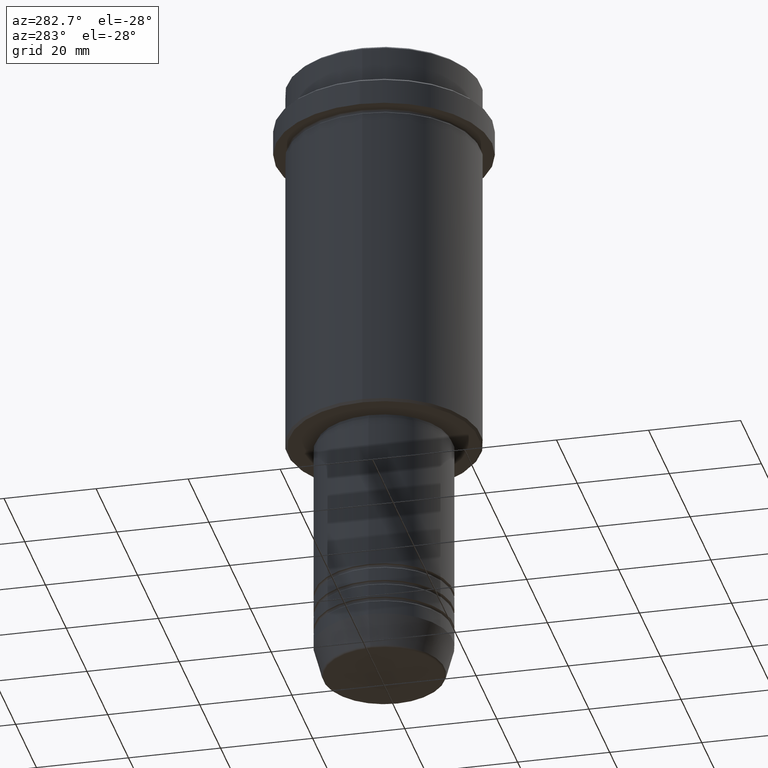
[diagram: clean part render]
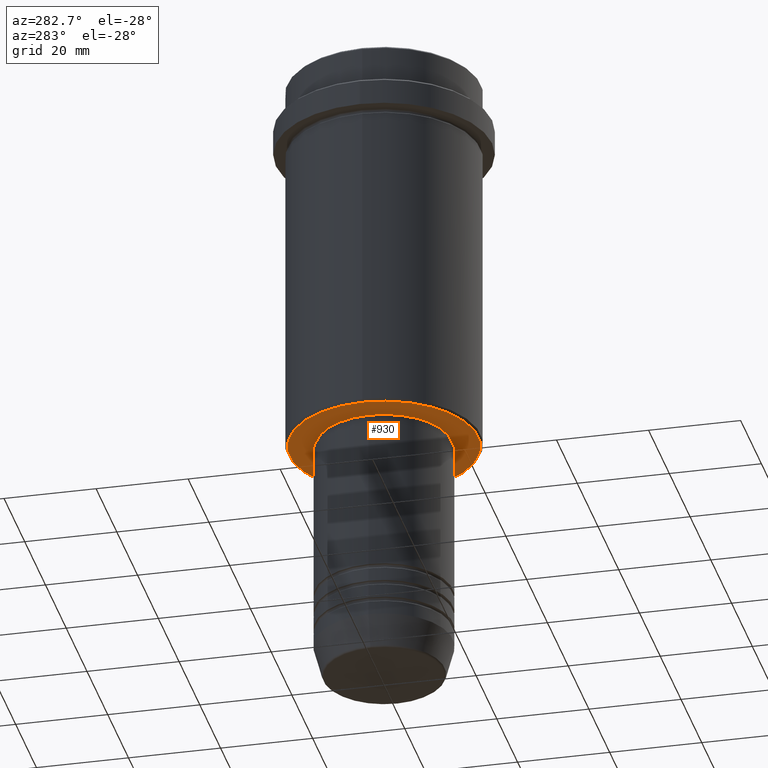
[diagram: same view with one face highlighted and labeled with its STEP entity id]
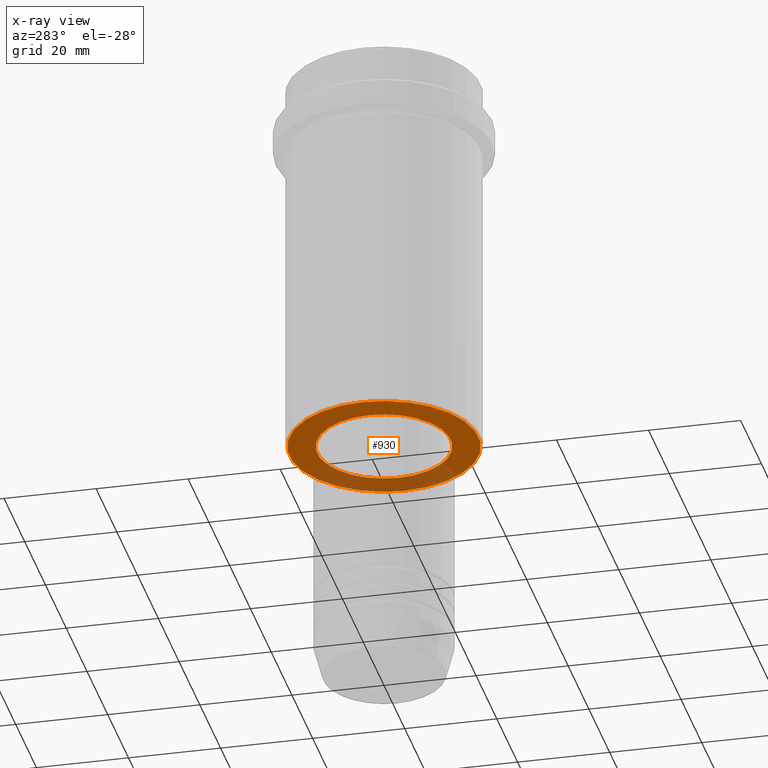
[diagram: x-ray of the same camera — body ghosted, the highlighted face saturated]
A machine part, auxiliary view. The second image highlights one B-rep face of the part: STEP entity #930.
The next image is the same camera in x-ray: the body ghosted, the highlighted face saturated — about 30% of this face is hidden behind the body in this view.
In plain terms, the highlighted planar face has unit normal (0, 0, -1).
Its self-contained STEP definition (entity closure, byte-faithful):
#40 = ORIENTED_EDGE ( 'NONE', *, *, #260, .T. ) ;
#53 = AXIS2_PLACEMENT_3D ( 'NONE', #628, #638, #535 ) ;
#108 = ORIENTED_EDGE ( 'NONE', *, *, #1228, .T. ) ;
#153 = ORIENTED_EDGE ( 'NONE', *, *, #364, .T. ) ;
#181 = DIRECTION ( 'NONE',  ( -0.000000000000000000, -0.000000000000000000, 1.000000000000000000 ) ) ;
#222 = DIRECTION ( 'NONE',  ( -1.000000000000000000, 0.000000000000000000, -0.000000000000000000 ) ) ;
#260 = EDGE_CURVE ( 'NONE', #1185, #1374, #496, .T. ) ;
#270 = AXIS2_PLACEMENT_3D ( 'NONE', #842, #1254, #938 ) ;
#297 = CARTESIAN_POINT ( 'NONE',  ( 0.000000000000000000, 0.000000000000000000, -85.00000000000001421 ) ) ;
#320 = EDGE_LOOP ( 'NONE', ( #40, #153 ) ) ;
#323 = CARTESIAN_POINT ( 'NONE',  ( -14.49999999999999467, 1.775737858763661620E-15, -85.00000000000001421 ) ) ;
#364 = EDGE_CURVE ( 'NONE', #1374, #1185, #960, .T. ) ;
#385 = CARTESIAN_POINT ( 'NONE',  ( 20.50000000000000355, 0.000000000000000000, -85.00000000000001421 ) ) ;
#458 = FACE_BOUND ( 'NONE', #320, .T. ) ;
#471 = CIRCLE ( 'NONE', #53, 20.50000000000000355 ) ;
#496 = CIRCLE ( 'NONE', #1074, 14.49999999999999467 ) ;
#517 = EDGE_CURVE ( 'NONE', #1212, #1061, #471, .T. ) ;
#521 = AXIS2_PLACEMENT_3D ( 'NONE', #676, #1076, #222 ) ;
#535 = DIRECTION ( 'NONE',  ( -1.000000000000000000, 0.000000000000000000, 0.000000000000000000 ) ) ;
#568 = FACE_OUTER_BOUND ( 'NONE', #906, .T. ) ;
#628 = CARTESIAN_POINT ( 'NONE',  ( 0.000000000000000000, 0.000000000000000000, -85.00000000000001421 ) ) ;
#638 = DIRECTION ( 'NONE',  ( 0.000000000000000000, 0.000000000000000000, -1.000000000000000000 ) ) ;
#676 = CARTESIAN_POINT ( 'NONE',  ( 0.000000000000000000, 21.00000000000000000, -85.00000000000001421 ) ) ;
#707 = DIRECTION ( 'NONE',  ( -0.000000000000000000, -0.000000000000000000, 1.000000000000000000 ) ) ;
#730 = DIRECTION ( 'NONE',  ( 1.000000000000000000, 0.000000000000000000, 0.000000000000000000 ) ) ;
#742 = AXIS2_PLACEMENT_3D ( 'NONE', #1360, #181, #1369 ) ;
#819 = CARTESIAN_POINT ( 'NONE',  ( 14.49999999999999467, 0.000000000000000000, -85.00000000000001421 ) ) ;
#842 = CARTESIAN_POINT ( 'NONE',  ( 0.000000000000000000, 0.000000000000000000, -85.00000000000001421 ) ) ;
#878 = CIRCLE ( 'NONE', #270, 20.50000000000000355 ) ;
#906 = EDGE_LOOP ( 'NONE', ( #108, #1150 ) ) ;
#930 = ADVANCED_FACE ( 'NONE', ( #568, #458 ), #972, .T. ) ;
#938 = DIRECTION ( 'NONE',  ( -1.000000000000000000, 0.000000000000000000, 0.000000000000000000 ) ) ;
#960 = CIRCLE ( 'NONE', #742, 14.49999999999999467 ) ;
#972 = PLANE ( 'NONE',  #521 ) ;
#1061 = VERTEX_POINT ( 'NONE', #385 ) ;
#1074 = AXIS2_PLACEMENT_3D ( 'NONE', #297, #707, #730 ) ;
#1076 = DIRECTION ( 'NONE',  ( 0.000000000000000000, 0.000000000000000000, -1.000000000000000000 ) ) ;
#1150 = ORIENTED_EDGE ( 'NONE', *, *, #517, .T. ) ;
#1159 = CARTESIAN_POINT ( 'NONE',  ( -20.50000000000000355, 2.541142108230758269E-15, -85.00000000000001421 ) ) ;
#1185 = VERTEX_POINT ( 'NONE', #819 ) ;
#1212 = VERTEX_POINT ( 'NONE', #1159 ) ;
#1228 = EDGE_CURVE ( 'NONE', #1061, #1212, #878, .T. ) ;
#1254 = DIRECTION ( 'NONE',  ( 0.000000000000000000, 0.000000000000000000, -1.000000000000000000 ) ) ;
#1360 = CARTESIAN_POINT ( 'NONE',  ( 0.000000000000000000, 0.000000000000000000, -85.00000000000001421 ) ) ;
#1369 = DIRECTION ( 'NONE',  ( 1.000000000000000000, 0.000000000000000000, 0.000000000000000000 ) ) ;
#1374 = VERTEX_POINT ( 'NONE', #323 ) ;